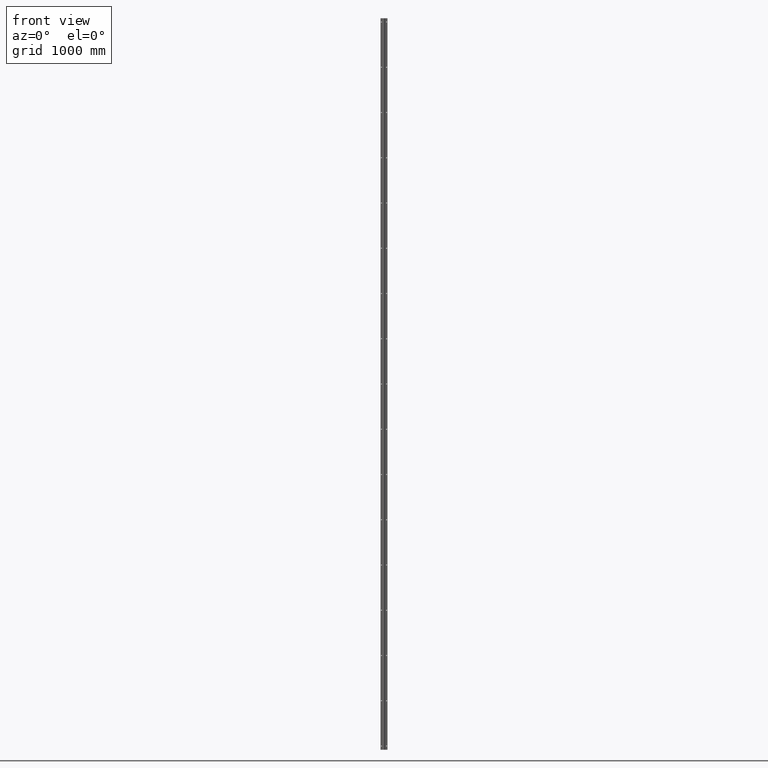
[diagram: clean part render]
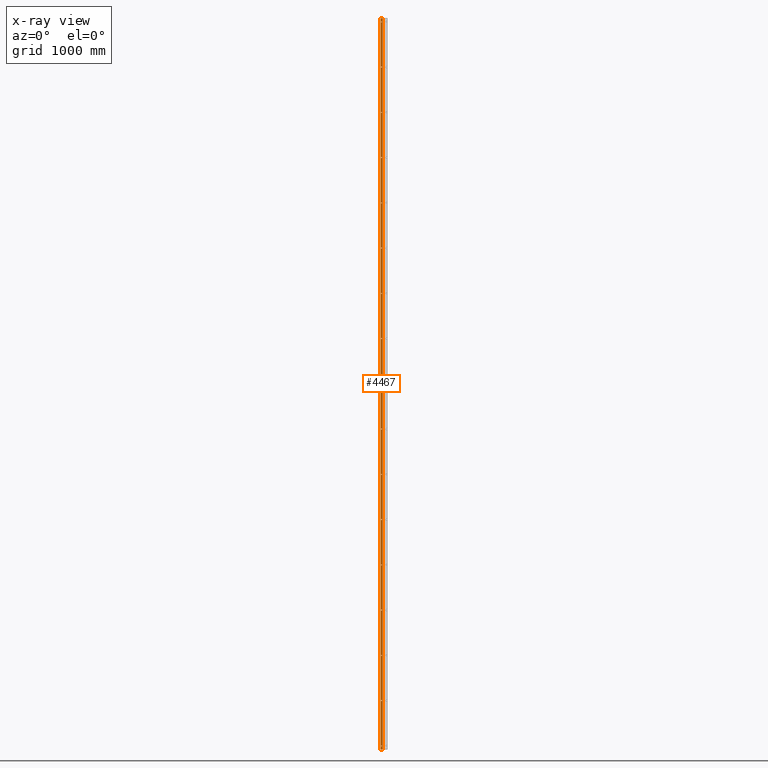
[diagram: x-ray — body ghosted, one internal face saturated and labeled with its STEP entity id]
A machine part, front view, then the same camera in x-ray: the body is ghosted and one INTERNAL B-rep face — a face not visible from any outside direction — is saturated and labeled: STEP entity #4467.
In plain terms, the highlighted planar face has unit normal (0, 1, 0).
Its self-contained STEP definition (entity closure, byte-faithful):
#9 = ORIENTED_EDGE ( 'NONE', *, *, #12617, .T. ) ;
#88 = CARTESIAN_POINT ( 'NONE',  ( -21.75000000000002487, 0.000000000000000000, 745.7500000000003411 ) ) ;
#106 = VERTEX_POINT ( 'NONE', #5376 ) ;
#114 = LINE ( 'NONE', #12943, #9185 ) ;
#159 = EDGE_CURVE ( 'NONE', #12452, #2256, #7945, .T. ) ;
#166 = DIRECTION ( 'NONE',  ( -1.000000000000000000, -0.000000000000000000, -0.000000000000000000 ) ) ;
#171 = VERTEX_POINT ( 'NONE', #584 ) ;
#177 = FACE_BOUND ( 'NONE', #8901, .T. ) ;
#180 = CIRCLE ( 'NONE', #9620, 3.249999999999975131 ) ;
#183 = CARTESIAN_POINT ( 'NONE',  ( -20.24999999999997513, 0.000000000000000000, -2224.250000000000455 ) ) ;
#198 = FACE_BOUND ( 'NONE', #6628, .T. ) ;
#225 = AXIS2_PLACEMENT_3D ( 'NONE', #12950, #1889, #9272 ) ;
#293 = LINE ( 'NONE', #940, #12491 ) ;
#298 = ORIENTED_EDGE ( 'NONE', *, *, #11846, .T. ) ;
#343 = DIRECTION ( 'NONE',  ( 0.000000000000000000, 1.000000000000000000, 0.000000000000000000 ) ) ;
#425 = CARTESIAN_POINT ( 'NONE',  ( -20.24999999999997513, 0.000000000000000000, -1117.000000000000000 ) ) ;
#451 = EDGE_CURVE ( 'NONE', #14409, #11735, #3683, .T. ) ;
#461 = EDGE_LOOP ( 'NONE', ( #2543, #9957, #11150, #6240 ) ) ;
#462 = AXIS2_PLACEMENT_3D ( 'NONE', #8703, #6246, #14807 ) ;
#489 = VERTEX_POINT ( 'NONE', #2177 ) ;
#543 = VERTEX_POINT ( 'NONE', #15737 ) ;
#567 = FACE_BOUND ( 'NONE', #5187, .T. ) ;
#584 = CARTESIAN_POINT ( 'NONE',  ( -21.75000000000002487, 0.000000000000000000, 2224.250000000000455 ) ) ;
#588 = AXIS2_PLACEMENT_3D ( 'NONE', #12261, #15745, #13373 ) ;
#618 = ORIENTED_EDGE ( 'NONE', *, *, #8066, .T. ) ;
#643 = CARTESIAN_POINT ( 'NONE',  ( -21.75000000000002487, 0.000000000000000000, 2230.750000000000455 ) ) ;
#646 = CARTESIAN_POINT ( 'NONE',  ( -21.75000000000002487, 0.000000000000000000, -739.2500000000002274 ) ) ;
#647 = VERTEX_POINT ( 'NONE', #9644 ) ;
#672 = CIRCLE ( 'NONE', #13696, 3.249999999999975131 ) ;
#681 = CARTESIAN_POINT ( 'NONE',  ( -21.75000000000002487, 0.000000000000000000, 1481.750000000000455 ) ) ;
#699 = EDGE_CURVE ( 'NONE', #543, #13088, #11761, .T. ) ;
#765 = ORIENTED_EDGE ( 'NONE', *, *, #11867, .T. ) ;
#766 = CARTESIAN_POINT ( 'NONE',  ( -21.75000000000002487, 0.000000000000000000, 1856.250000000000455 ) ) ;
#774 = VERTEX_POINT ( 'NONE', #6074 ) ;
#803 = CARTESIAN_POINT ( 'NONE',  ( -21.75000000000002487, 0.000000000000000000, 1485.000000000000227 ) ) ;
#847 = CARTESIAN_POINT ( 'NONE',  ( -21.75000000000002487, 0.000000000000000000, 1113.750000000000227 ) ) ;
#878 = VERTEX_POINT ( 'NONE', #13280 ) ;
#915 = ORIENTED_EDGE ( 'NONE', *, *, #159, .T. ) ;
#940 = CARTESIAN_POINT ( 'NONE',  ( -21.75000000000002487, 0.000000000000000000, 739.2500000000004547 ) ) ;
#956 = DIRECTION ( 'NONE',  ( 1.000000000000000000, 0.000000000000000000, 0.000000000000000000 ) ) ;
#984 = ORIENTED_EDGE ( 'NONE', *, *, #8340, .T. ) ;
#1065 = EDGE_CURVE ( 'NONE', #9954, #15138, #12925, .T. ) ;
#1097 = CARTESIAN_POINT ( 'NONE',  ( -20.24999999999997513, 0.000000000000000000, -1852.999999999999773 ) ) ;
#1119 = VECTOR ( 'NONE', #10530, 1000.000000000000000 ) ;
#1134 = CIRCLE ( 'NONE', #3235, 3.249999999999975131 ) ;
#1164 = AXIS2_PLACEMENT_3D ( 'NONE', #4050, #1503, #10124 ) ;
#1180 = VERTEX_POINT ( 'NONE', #425 ) ;
#1208 = VERTEX_POINT ( 'NONE', #7973 ) ;
#1332 = VERTEX_POINT ( 'NONE', #9428 ) ;
#1338 = DIRECTION ( 'NONE',  ( 0.000000000000000000, 1.000000000000000000, 0.000000000000000000 ) ) ;
#1373 = VECTOR ( 'NONE', #9348, 1000.000000000000000 ) ;
#1393 = VECTOR ( 'NONE', #14691, 1000.000000000000000 ) ;
#1396 = DIRECTION ( 'NONE',  ( -1.000000000000000000, -0.000000000000000000, -0.000000000000000000 ) ) ;
#1452 = DIRECTION ( 'NONE',  ( 0.000000000000000000, 1.000000000000000000, 0.000000000000000000 ) ) ;
#1487 = DIRECTION ( 'NONE',  ( 1.000000000000000000, 0.000000000000000000, 0.000000000000000000 ) ) ;
#1490 = AXIS2_PLACEMENT_3D ( 'NONE', #2707, #1452, #6596 ) ;
#1503 = DIRECTION ( 'NONE',  ( 0.000000000000000000, 1.000000000000000000, 0.000000000000000000 ) ) ;
#1527 = CIRCLE ( 'NONE', #6061, 3.249999999999975131 ) ;
#1538 = CARTESIAN_POINT ( 'NONE',  ( -21.75000000000002487, 0.000000000000000000, -2602.000000000000455 ) ) ;
#1552 = CARTESIAN_POINT ( 'NONE',  ( -20.24999999999997513, 0.000000000000000000, 1110.500000000000227 ) ) ;
#1553 = ORIENTED_EDGE ( 'NONE', *, *, #4438, .T. ) ;
#1557 = EDGE_CURVE ( 'NONE', #8913, #1208, #1906, .T. ) ;
#1592 = VERTEX_POINT ( 'NONE', #9608 ) ;
#1641 = EDGE_CURVE ( 'NONE', #2882, #8913, #9597, .T. ) ;
#1658 = DIRECTION ( 'NONE',  ( 0.000000000000000000, 0.000000000000000000, 1.000000000000000000 ) ) ;
#1669 = EDGE_LOOP ( 'NONE', ( #14869, #298, #6513, #2241 ) ) ;
#1707 = EDGE_CURVE ( 'NONE', #878, #3859, #12337, .T. ) ;
#1735 = VERTEX_POINT ( 'NONE', #13560 ) ;
#1756 = ORIENTED_EDGE ( 'NONE', *, *, #10903, .F. ) ;
#1765 = ORIENTED_EDGE ( 'NONE', *, *, #6799, .T. ) ;
#1805 = CARTESIAN_POINT ( 'NONE',  ( -20.24999999999997513, 0.000000000000000000, -1488.249999999999773 ) ) ;
#1819 = CARTESIAN_POINT ( 'NONE',  ( -21.75000000000002487, 0.000000000000000000, 1859.500000000000455 ) ) ;
#1877 = ORIENTED_EDGE ( 'NONE', *, *, #8810, .T. ) ;
#1889 = DIRECTION ( 'NONE',  ( 0.000000000000000000, 1.000000000000000000, 0.000000000000000000 ) ) ;
#1906 = LINE ( 'NONE', #10852, #1119 ) ;
#1989 = CARTESIAN_POINT ( 'NONE',  ( -20.24999999999997513, 0.000000000000000000, -1859.499999999999773 ) ) ;
#2030 = CARTESIAN_POINT ( 'NONE',  ( -21.75000000000002487, 0.000000000000000000, -2966.750000000000000 ) ) ;
#2039 = VERTEX_POINT ( 'NONE', #8080 ) ;
#2063 = DIRECTION ( 'NONE',  ( 0.000000000000000000, 1.000000000000000000, 0.000000000000000000 ) ) ;
#2090 = VERTEX_POINT ( 'NONE', #12207 ) ;
#2096 = LINE ( 'NONE', #15204, #4595 ) ;
#2102 = DIRECTION ( 'NONE',  ( -1.000000000000000000, -0.000000000000000000, -0.000000000000000000 ) ) ;
#2117 = ORIENTED_EDGE ( 'NONE', *, *, #8860, .T. ) ;
#2144 = DIRECTION ( 'NONE',  ( 0.000000000000000000, 1.000000000000000000, 0.000000000000000000 ) ) ;
#2155 = ORIENTED_EDGE ( 'NONE', *, *, #12836, .T. ) ;
#2177 = CARTESIAN_POINT ( 'NONE',  ( -20.24999999999997513, 0.000000000000000000, -2966.750000000000000 ) ) ;
#2241 = ORIENTED_EDGE ( 'NONE', *, *, #8967, .T. ) ;
#2256 = VERTEX_POINT ( 'NONE', #5153 ) ;
#2270 = CARTESIAN_POINT ( 'NONE',  ( -20.24999999999997513, 0.000000000000000000, -2970.000000000000000 ) ) ;
#2317 = CIRCLE ( 'NONE', #5655, 3.249999999999975131 ) ;
#2337 = CARTESIAN_POINT ( 'NONE',  ( -21.75000000000002487, 0.000000000000000000, -1859.499999999999773 ) ) ;
#2347 = AXIS2_PLACEMENT_3D ( 'NONE', #15330, #5418, #10454 ) ;
#2467 = CARTESIAN_POINT ( 'NONE',  ( -21.75000000000002487, 0.000000000000000000, -1117.000000000000000 ) ) ;
#2483 = EDGE_CURVE ( 'NONE', #13890, #3859, #6363, .T. ) ;
#2498 = EDGE_LOOP ( 'NONE', ( #1877, #10948, #14498, #12654 ) ) ;
#2504 = CARTESIAN_POINT ( 'NONE',  ( -20.24999999999997513, 0.000000000000000000, 1117.000000000000227 ) ) ;
#2509 = AXIS2_PLACEMENT_3D ( 'NONE', #11591, #2880, #15238 ) ;
#2543 = ORIENTED_EDGE ( 'NONE', *, *, #8794, .T. ) ;
#2561 = EDGE_LOOP ( 'NONE', ( #3089, #7226, #1756, #7565 ) ) ;
#2603 = DIRECTION ( 'NONE',  ( 0.000000000000000000, 0.000000000000000000, 1.000000000000000000 ) ) ;
#2606 = DIRECTION ( 'NONE',  ( 0.000000000000000000, 0.000000000000000000, 1.000000000000000000 ) ) ;
#2621 = DIRECTION ( 'NONE',  ( 0.000000000000000000, 0.000000000000000000, 1.000000000000000000 ) ) ;
#2697 = EDGE_LOOP ( 'NONE', ( #6349, #4918, #6143, #14050 ) ) ;
#2706 = ORIENTED_EDGE ( 'NONE', *, *, #9690, .T. ) ;
#2707 = CARTESIAN_POINT ( 'NONE',  ( -29.00000000000000000, 0.000000000000000000, 3000.000000000000000 ) ) ;
#2718 = LINE ( 'NONE', #12516, #3896 ) ;
#2749 = ORIENTED_EDGE ( 'NONE', *, *, #451, .T. ) ;
#2761 = AXIS2_PLACEMENT_3D ( 'NONE', #803, #9432, #4548 ) ;
#2767 = DIRECTION ( 'NONE',  ( 1.000000000000000000, 0.000000000000000000, 0.000000000000000000 ) ) ;
#2793 = CARTESIAN_POINT ( 'NONE',  ( -21.75000000000002487, 0.000000000000000000, 1117.000000000000227 ) ) ;
#2825 = CARTESIAN_POINT ( 'NONE',  ( -21.75000000000002487, 0.000000000000000000, 2970.000000000000000 ) ) ;
#2835 = LINE ( 'NONE', #15556, #4196 ) ;
#2873 = AXIS2_PLACEMENT_3D ( 'NONE', #14949, #11141, #2603 ) ;
#2880 = DIRECTION ( 'NONE',  ( 0.000000000000000000, 1.000000000000000000, 0.000000000000000000 ) ) ;
#2881 = CARTESIAN_POINT ( 'NONE',  ( -21.75000000000002487, 0.000000000000000000, -2224.250000000000455 ) ) ;
#2882 = VERTEX_POINT ( 'NONE', #4720 ) ;
#2895 = VERTEX_POINT ( 'NONE', #15534 ) ;
#2916 = CARTESIAN_POINT ( 'NONE',  ( -29.00000000000000000, 0.000000000000000000, -3000.000000000000000 ) ) ;
#2921 = DIRECTION ( 'NONE',  ( 1.000000000000000000, 0.000000000000000000, 0.000000000000000000 ) ) ;
#2948 = AXIS2_PLACEMENT_3D ( 'NONE', #5456, #3015, #6698 ) ;
#2984 = DIRECTION ( 'NONE',  ( 0.000000000000000000, 0.000000000000000000, 1.000000000000000000 ) ) ;
#3015 = DIRECTION ( 'NONE',  ( 0.000000000000000000, 1.000000000000000000, 0.000000000000000000 ) ) ;
#3019 = VECTOR ( 'NONE', #9175, 1000.000000000000000 ) ;
#3045 = CARTESIAN_POINT ( 'NONE',  ( -21.75000000000002487, 0.000000000000000000, 371.2499999999998863 ) ) ;
#3066 = ORIENTED_EDGE ( 'NONE', *, *, #9751, .T. ) ;
#3084 = EDGE_CURVE ( 'NONE', #10153, #9493, #14596, .T. ) ;
#3089 = ORIENTED_EDGE ( 'NONE', *, *, #2483, .T. ) ;
#3090 = FACE_BOUND ( 'NONE', #10089, .T. ) ;
#3177 = EDGE_CURVE ( 'NONE', #9088, #10153, #4776, .T. ) ;
#3192 = CIRCLE ( 'NONE', #14669, 3.249999999999975131 ) ;
#3208 = DIRECTION ( 'NONE',  ( 0.000000000000000000, 1.000000000000000000, 0.000000000000000000 ) ) ;
#3235 = AXIS2_PLACEMENT_3D ( 'NONE', #11684, #9249, #15500 ) ;
#3271 = DIRECTION ( 'NONE',  ( 0.000000000000000000, 0.000000000000000000, 1.000000000000000000 ) ) ;
#3273 = VECTOR ( 'NONE', #5647, 1000.000000000000000 ) ;
#3308 = CIRCLE ( 'NONE', #14769, 3.249999999999975131 ) ;
#3324 = VERTEX_POINT ( 'NONE', #14323 ) ;
#3331 = CARTESIAN_POINT ( 'NONE',  ( -20.24999999999997513, 0.000000000000000000, 2595.500000000000455 ) ) ;
#3337 = VECTOR ( 'NONE', #3697, 1000.000000000000000 ) ;
#3349 = EDGE_CURVE ( 'NONE', #8751, #10728, #2835, .T. ) ;
#3358 = EDGE_CURVE ( 'NONE', #9772, #4479, #114, .T. ) ;
#3365 = AXIS2_PLACEMENT_3D ( 'NONE', #7588, #14857, #2606 ) ;
#3368 = AXIS2_PLACEMENT_3D ( 'NONE', #5659, #14233, #12960 ) ;
#3377 = EDGE_CURVE ( 'NONE', #6233, #9288, #293, .T. ) ;
#3412 = CIRCLE ( 'NONE', #7831, 3.249999999999975131 ) ;
#3496 = AXIS2_PLACEMENT_3D ( 'NONE', #2270, #6022, #3516 ) ;
#3516 = DIRECTION ( 'NONE',  ( 0.000000000000000000, 0.000000000000000000, 1.000000000000000000 ) ) ;
#3526 = VECTOR ( 'NONE', #8227, 1000.000000000000000 ) ;
#3550 = VECTOR ( 'NONE', #6346, 1000.000000000000000 ) ;
#3599 = DIRECTION ( 'NONE',  ( 0.000000000000000000, 0.000000000000000000, 1.000000000000000000 ) ) ;
#3604 = CARTESIAN_POINT ( 'NONE',  ( -21.75000000000002487, 0.000000000000000000, 2966.750000000000000 ) ) ;
#3608 = CARTESIAN_POINT ( 'NONE',  ( -21.75000000000002487, 0.000000000000000000, 2598.750000000000455 ) ) ;
#3683 = CIRCLE ( 'NONE', #7055, 3.249999999999975131 ) ;
#3697 = DIRECTION ( 'NONE',  ( -1.000000000000000000, -0.000000000000000000, -0.000000000000000000 ) ) ;
#3714 = VERTEX_POINT ( 'NONE', #15219 ) ;
#3729 = VERTEX_POINT ( 'NONE', #4306 ) ;
#3736 = DIRECTION ( 'NONE',  ( -1.000000000000000000, -0.000000000000000000, -0.000000000000000000 ) ) ;
#3755 = CARTESIAN_POINT ( 'NONE',  ( -21.75000000000002487, 0.000000000000000000, -3.249999999999975131 ) ) ;
#3859 = VERTEX_POINT ( 'NONE', #15431 ) ;
#3896 = VECTOR ( 'NONE', #3992, 1000.000000000000000 ) ;
#3905 = ORIENTED_EDGE ( 'NONE', *, *, #6618, .T. ) ;
#3986 = EDGE_LOOP ( 'NONE', ( #3905, #13410, #13539, #14513 ) ) ;
#3992 = DIRECTION ( 'NONE',  ( -1.000000000000000000, -0.000000000000000000, -0.000000000000000000 ) ) ;
#4022 = CARTESIAN_POINT ( 'NONE',  ( -21.75000000000002487, 0.000000000000000000, 2966.750000000000000 ) ) ;
#4045 = CIRCLE ( 'NONE', #225, 3.249999999999975131 ) ;
#4050 = CARTESIAN_POINT ( 'NONE',  ( -20.24999999999997513, 0.000000000000000000, 0.000000000000000000 ) ) ;
#4086 = DIRECTION ( 'NONE',  ( 1.000000000000000000, 0.000000000000000000, 0.000000000000000000 ) ) ;
#4095 = ORIENTED_EDGE ( 'NONE', *, *, #10631, .T. ) ;
#4109 = ORIENTED_EDGE ( 'NONE', *, *, #7839, .T. ) ;
#4164 = CARTESIAN_POINT ( 'NONE',  ( -21.75000000000002487, 0.000000000000000000, -745.7500000000001137 ) ) ;
#4166 = CIRCLE ( 'NONE', #9983, 3.249999999999975131 ) ;
#4186 = VERTEX_POINT ( 'NONE', #15396 ) ;
#4196 = VECTOR ( 'NONE', #8376, 1000.000000000000000 ) ;
#4203 = CARTESIAN_POINT ( 'NONE',  ( -21.75000000000002487, 0.000000000000000000, -374.4999999999998295 ) ) ;
#4306 = CARTESIAN_POINT ( 'NONE',  ( -21.75000000000002487, 0.000000000000000000, -2973.250000000000000 ) ) ;
#4324 = EDGE_CURVE ( 'NONE', #14070, #6805, #7275, .T. ) ;
#4343 = EDGE_CURVE ( 'NONE', #15856, #1592, #13407, .T. ) ;
#4415 = EDGE_CURVE ( 'NONE', #1208, #2039, #2317, .T. ) ;
#4438 = EDGE_CURVE ( 'NONE', #10061, #647, #7592, .T. ) ;
#4467 = ADVANCED_FACE ( 'NONE', ( #12920, #11211, #7186, #8490, #177, #12551, #8880, #8513, #9628, #6421, #6403, #12172, #12149, #567, #9241, #3090, #5636, #198 ), #12659, .F. ) ;
#4478 = VERTEX_POINT ( 'NONE', #11310 ) ;
#4479 = VERTEX_POINT ( 'NONE', #14954 ) ;
#4499 = ORIENTED_EDGE ( 'NONE', *, *, #3177, .T. ) ;
#4502 = DIRECTION ( 'NONE',  ( 0.000000000000000000, 0.000000000000000000, 1.000000000000000000 ) ) ;
#4503 = CARTESIAN_POINT ( 'NONE',  ( -21.75000000000002487, 0.000000000000000000, 3.249999999999975131 ) ) ;
#4506 = CARTESIAN_POINT ( 'NONE',  ( -21.75000000000002487, 0.000000000000000000, 739.2500000000004547 ) ) ;
#4513 = EDGE_CURVE ( 'NONE', #9209, #2895, #2718, .T. ) ;
#4523 = DIRECTION ( 'NONE',  ( 0.000000000000000000, 1.000000000000000000, 0.000000000000000000 ) ) ;
#4548 = DIRECTION ( 'NONE',  ( 0.000000000000000000, 0.000000000000000000, 1.000000000000000000 ) ) ;
#4595 = VECTOR ( 'NONE', #11556, 1000.000000000000000 ) ;
#4626 = EDGE_CURVE ( 'NONE', #3729, #9923, #5229, .T. ) ;
#4659 = VECTOR ( 'NONE', #6804, 1000.000000000000000 ) ;
#4675 = LINE ( 'NONE', #7284, #1393 ) ;
#4709 = EDGE_CURVE ( 'NONE', #1332, #106, #7960, .T. ) ;
#4720 = CARTESIAN_POINT ( 'NONE',  ( -20.24999999999997513, 0.000000000000000000, 2602.000000000000455 ) ) ;
#4776 = LINE ( 'NONE', #2881, #5365 ) ;
#4836 = EDGE_CURVE ( 'NONE', #11623, #1332, #5251, .T. ) ;
#4918 = ORIENTED_EDGE ( 'NONE', *, *, #4415, .T. ) ;
#4986 = VECTOR ( 'NONE', #956, 1000.000000000000000 ) ;
#5053 = EDGE_LOOP ( 'NONE', ( #618, #4109, #12323, #15043 ) ) ;
#5056 = CARTESIAN_POINT ( 'NONE',  ( -21.75000000000002487, 0.000000000000000000, 1117.000000000000227 ) ) ;
#5118 = EDGE_CURVE ( 'NONE', #774, #12174, #11719, .T. ) ;
#5153 = CARTESIAN_POINT ( 'NONE',  ( -20.24999999999997513, 0.000000000000000000, 2230.750000000000455 ) ) ;
#5187 = EDGE_LOOP ( 'NONE', ( #15084, #11551, #6231, #10233 ) ) ;
#5229 = CIRCLE ( 'NONE', #2948, 3.249999999999975131 ) ;
#5251 = CIRCLE ( 'NONE', #10065, 3.249999999999975131 ) ;
#5268 = VECTOR ( 'NONE', #2767, 1000.000000000000000 ) ;
#5321 = DIRECTION ( 'NONE',  ( 1.000000000000000000, 0.000000000000000000, 0.000000000000000000 ) ) ;
#5322 = DIRECTION ( 'NONE',  ( 1.000000000000000000, 0.000000000000000000, 0.000000000000000000 ) ) ;
#5365 = VECTOR ( 'NONE', #5321, 1000.000000000000000 ) ;
#5376 = CARTESIAN_POINT ( 'NONE',  ( -20.24999999999997513, 0.000000000000000000, 1859.500000000000455 ) ) ;
#5386 = VERTEX_POINT ( 'NONE', #15837 ) ;
#5417 = CARTESIAN_POINT ( 'NONE',  ( -21.75000000000002487, 0.000000000000000000, 2227.500000000000455 ) ) ;
#5418 = DIRECTION ( 'NONE',  ( 0.000000000000000000, 1.000000000000000000, 0.000000000000000000 ) ) ;
#5431 = VECTOR ( 'NONE', #5322, 1000.000000000000000 ) ;
#5456 = CARTESIAN_POINT ( 'NONE',  ( -21.75000000000002487, 0.000000000000000000, -2970.000000000000000 ) ) ;
#5457 = ORIENTED_EDGE ( 'NONE', *, *, #7523, .T. ) ;
#5544 = AXIS2_PLACEMENT_3D ( 'NONE', #3045, #10413, #14024 ) ;
#5567 = AXIS2_PLACEMENT_3D ( 'NONE', #7221, #2063, #8284 ) ;
#5616 = CARTESIAN_POINT ( 'NONE',  ( -20.24999999999997513, 0.000000000000000000, -2230.750000000000455 ) ) ;
#5636 = FACE_BOUND ( 'NONE', #461, .T. ) ;
#5647 = DIRECTION ( 'NONE',  ( -1.000000000000000000, -0.000000000000000000, -0.000000000000000000 ) ) ;
#5655 = AXIS2_PLACEMENT_3D ( 'NONE', #3608, #11091, #12360 ) ;
#5659 = CARTESIAN_POINT ( 'NONE',  ( -20.24999999999997513, 0.000000000000000000, -1484.999999999999773 ) ) ;
#5760 = VERTEX_POINT ( 'NONE', #13277 ) ;
#5778 = CARTESIAN_POINT ( 'NONE',  ( -21.75000000000002487, 0.000000000000000000, 742.5000000000003411 ) ) ;
#5799 = CARTESIAN_POINT ( 'NONE',  ( -21.75000000000002487, 0.000000000000000000, 374.4999999999998295 ) ) ;
#5810 = ORIENTED_EDGE ( 'NONE', *, *, #10051, .T. ) ;
#5835 = CARTESIAN_POINT ( 'NONE',  ( -21.75000000000002487, 0.000000000000000000, 0.000000000000000000 ) ) ;
#5855 = DIRECTION ( 'NONE',  ( 1.000000000000000000, 0.000000000000000000, 0.000000000000000000 ) ) ;
#5858 = ORIENTED_EDGE ( 'NONE', *, *, #15383, .T. ) ;
#5861 = CARTESIAN_POINT ( 'NONE',  ( -29.00000000000000000, 0.000000000000000000, 3000.000000000000000 ) ) ;
#5914 = CARTESIAN_POINT ( 'NONE',  ( -21.75000000000002487, 0.000000000000000000, -2973.250000000000000 ) ) ;
#5927 = VECTOR ( 'NONE', #8646, 1000.000000000000000 ) ;
#5962 = CARTESIAN_POINT ( 'NONE',  ( -21.75000000000002487, 0.000000000000000000, -2595.500000000000455 ) ) ;
#6017 = DIRECTION ( 'NONE',  ( 1.000000000000000000, 0.000000000000000000, 0.000000000000000000 ) ) ;
#6022 = DIRECTION ( 'NONE',  ( 0.000000000000000000, 1.000000000000000000, 0.000000000000000000 ) ) ;
#6033 = LINE ( 'NONE', #14307, #1373 ) ;
#6055 = ORIENTED_EDGE ( 'NONE', *, *, #7959, .T. ) ;
#6061 = AXIS2_PLACEMENT_3D ( 'NONE', #7744, #343, #1658 ) ;
#6064 = VECTOR ( 'NONE', #9737, 1000.000000000000000 ) ;
#6074 = CARTESIAN_POINT ( 'NONE',  ( -20.24999999999997513, 0.000000000000000000, -2602.000000000000455 ) ) ;
#6143 = ORIENTED_EDGE ( 'NONE', *, *, #8191, .T. ) ;
#6148 = CARTESIAN_POINT ( 'NONE',  ( -20.24999999999997513, 0.000000000000000000, 739.2500000000004547 ) ) ;
#6171 = CIRCLE ( 'NONE', #5544, 3.249999999999975131 ) ;
#6206 = LINE ( 'NONE', #681, #3273 ) ;
#6231 = ORIENTED_EDGE ( 'NONE', *, *, #7955, .T. ) ;
#6233 = VERTEX_POINT ( 'NONE', #6148 ) ;
#6240 = ORIENTED_EDGE ( 'NONE', *, *, #5118, .T. ) ;
#6246 = DIRECTION ( 'NONE',  ( 0.000000000000000000, 1.000000000000000000, 0.000000000000000000 ) ) ;
#6258 = CARTESIAN_POINT ( 'NONE',  ( -21.75000000000002487, 0.000000000000000000, -367.9999999999998863 ) ) ;
#6332 = CARTESIAN_POINT ( 'NONE',  ( -21.75000000000002487, 0.000000000000000000, 367.9999999999998863 ) ) ;
#6346 = DIRECTION ( 'NONE',  ( -1.000000000000000000, -0.000000000000000000, -0.000000000000000000 ) ) ;
#6349 = ORIENTED_EDGE ( 'NONE', *, *, #1557, .T. ) ;
#6350 = CARTESIAN_POINT ( 'NONE',  ( -21.75000000000002487, 0.000000000000000000, -2230.750000000000455 ) ) ;
#6363 = LINE ( 'NONE', #11350, #7522 ) ;
#6403 = FACE_BOUND ( 'NONE', #13928, .T. ) ;
#6408 = DIRECTION ( 'NONE',  ( 0.000000000000000000, 0.000000000000000000, 1.000000000000000000 ) ) ;
#6417 = VERTEX_POINT ( 'NONE', #5056 ) ;
#6421 = FACE_BOUND ( 'NONE', #8323, .T. ) ;
#6484 = LINE ( 'NONE', #14867, #3550 ) ;
#6506 = CIRCLE ( 'NONE', #2347, 3.249999999999975131 ) ;
#6513 = ORIENTED_EDGE ( 'NONE', *, *, #12931, .T. ) ;
#6519 = VECTOR ( 'NONE', #1396, 1000.000000000000000 ) ;
#6520 = EDGE_CURVE ( 'NONE', #3324, #543, #6171, .T. ) ;
#6525 = CARTESIAN_POINT ( 'NONE',  ( -20.24999999999997513, 0.000000000000000000, -1856.249999999999773 ) ) ;
#6596 = DIRECTION ( 'NONE',  ( 0.000000000000000000, -0.000000000000000000, 1.000000000000000000 ) ) ;
#6618 = EDGE_CURVE ( 'NONE', #5760, #9772, #12098, .T. ) ;
#6628 = EDGE_LOOP ( 'NONE', ( #9771, #10709, #8662, #10462 ) ) ;
#6666 = ORIENTED_EDGE ( 'NONE', *, *, #14770, .T. ) ;
#6688 = CIRCLE ( 'NONE', #8654, 3.249999999999975131 ) ;
#6698 = DIRECTION ( 'NONE',  ( 0.000000000000000000, 0.000000000000000000, 1.000000000000000000 ) ) ;
#6700 = DIRECTION ( 'NONE',  ( 0.000000000000000000, 0.000000000000000000, 1.000000000000000000 ) ) ;
#6718 = EDGE_CURVE ( 'NONE', #4478, #9954, #3412, .T. ) ;
#6775 = CARTESIAN_POINT ( 'NONE',  ( -21.75000000000002487, 0.000000000000000000, 1110.500000000000227 ) ) ;
#6799 = EDGE_CURVE ( 'NONE', #8450, #11176, #9576, .T. ) ;
#6804 = DIRECTION ( 'NONE',  ( 1.000000000000000000, 0.000000000000000000, 0.000000000000000000 ) ) ;
#6805 = VERTEX_POINT ( 'NONE', #2337 ) ;
#6826 = DIRECTION ( 'NONE',  ( 1.000000000000000000, 0.000000000000000000, 0.000000000000000000 ) ) ;
#6844 = ORIENTED_EDGE ( 'NONE', *, *, #13803, .T. ) ;
#6859 = CARTESIAN_POINT ( 'NONE',  ( -20.24999999999997513, 0.000000000000000000, -2973.250000000000000 ) ) ;
#6878 = LINE ( 'NONE', #2793, #3019 ) ;
#6936 = VERTEX_POINT ( 'NONE', #6350 ) ;
#7055 = AXIS2_PLACEMENT_3D ( 'NONE', #9252, #12392, #8730 ) ;
#7102 = EDGE_CURVE ( 'NONE', #171, #12452, #13057, .T. ) ;
#7184 = CIRCLE ( 'NONE', #16016, 3.249999999999975131 ) ;
#7186 = FACE_OUTER_BOUND ( 'NONE', #2561, .T. ) ;
#7221 = CARTESIAN_POINT ( 'NONE',  ( -21.75000000000002487, 0.000000000000000000, -2227.500000000000455 ) ) ;
#7226 = ORIENTED_EDGE ( 'NONE', *, *, #1707, .F. ) ;
#7275 = LINE ( 'NONE', #8631, #8807 ) ;
#7284 = CARTESIAN_POINT ( 'NONE',  ( -21.75000000000002487, 0.000000000000000000, 2973.250000000000000 ) ) ;
#7286 = LINE ( 'NONE', #6332, #6519 ) ;
#7336 = EDGE_CURVE ( 'NONE', #14615, #11186, #672, .T. ) ;
#7397 = AXIS2_PLACEMENT_3D ( 'NONE', #9979, #14973, #2621 ) ;
#7416 = CARTESIAN_POINT ( 'NONE',  ( -20.24999999999997513, 0.000000000000000000, -367.9999999999998863 ) ) ;
#7446 = LINE ( 'NONE', #16000, #11646 ) ;
#7472 = DIRECTION ( 'NONE',  ( 0.000000000000000000, 0.000000000000000000, 1.000000000000000000 ) ) ;
#7522 = VECTOR ( 'NONE', #1487, 1000.000000000000000 ) ;
#7523 = EDGE_CURVE ( 'NONE', #1735, #3324, #7286, .T. ) ;
#7565 = ORIENTED_EDGE ( 'NONE', *, *, #15037, .T. ) ;
#7588 = CARTESIAN_POINT ( 'NONE',  ( -21.75000000000002487, 0.000000000000000000, -371.2499999999998863 ) ) ;
#7592 = CIRCLE ( 'NONE', #1164, 3.249999999999975131 ) ;
#7606 = CARTESIAN_POINT ( 'NONE',  ( -21.75000000000002487, 0.000000000000000000, -745.7500000000001137 ) ) ;
#7674 = CIRCLE ( 'NONE', #12264, 3.249999999999975131 ) ;
#7744 = CARTESIAN_POINT ( 'NONE',  ( -20.24999999999997513, 0.000000000000000000, -371.2499999999998863 ) ) ;
#7831 = AXIS2_PLACEMENT_3D ( 'NONE', #10623, #11869, #4502 ) ;
#7839 = EDGE_CURVE ( 'NONE', #6417, #12757, #6878, .T. ) ;
#7848 = AXIS2_PLACEMENT_3D ( 'NONE', #5835, #2144, #15498 ) ;
#7895 = CARTESIAN_POINT ( 'NONE',  ( -21.75000000000002487, 0.000000000000000000, 1488.250000000000227 ) ) ;
#7910 = EDGE_LOOP ( 'NONE', ( #8275, #1765, #9103, #12727 ) ) ;
#7933 = EDGE_LOOP ( 'NONE', ( #12618, #10766, #9602, #5457 ) ) ;
#7941 = AXIS2_PLACEMENT_3D ( 'NONE', #5417, #10334, #2984 ) ;
#7945 = LINE ( 'NONE', #11664, #13308 ) ;
#7955 = EDGE_CURVE ( 'NONE', #5386, #9209, #10131, .T. ) ;
#7958 = VECTOR ( 'NONE', #2921, 1000.000000000000000 ) ;
#7959 = EDGE_CURVE ( 'NONE', #13962, #10061, #14939, .T. ) ;
#7960 = LINE ( 'NONE', #1819, #4659 ) ;
#7973 = CARTESIAN_POINT ( 'NONE',  ( -21.75000000000002487, 0.000000000000000000, 2595.500000000000455 ) ) ;
#7977 = CIRCLE ( 'NONE', #3496, 3.249999999999975131 ) ;
#8005 = CARTESIAN_POINT ( 'NONE',  ( -20.24999999999997513, 0.000000000000000000, 1485.000000000000227 ) ) ;
#8045 = LINE ( 'NONE', #16028, #5927 ) ;
#8056 = CARTESIAN_POINT ( 'NONE',  ( -21.75000000000002487, 0.000000000000000000, -1852.999999999999773 ) ) ;
#8066 = EDGE_CURVE ( 'NONE', #10728, #6417, #7674, .T. ) ;
#8080 = CARTESIAN_POINT ( 'NONE',  ( -21.75000000000002487, 0.000000000000000000, 2602.000000000000455 ) ) ;
#8167 = VERTEX_POINT ( 'NONE', #7606 ) ;
#8178 = LINE ( 'NONE', #5861, #6064 ) ;
#8180 = LINE ( 'NONE', #14367, #14701 ) ;
#8191 = EDGE_CURVE ( 'NONE', #2039, #2882, #8045, .T. ) ;
#8211 = CIRCLE ( 'NONE', #5567, 3.249999999999975131 ) ;
#8227 = DIRECTION ( 'NONE',  ( 1.000000000000000000, 0.000000000000000000, 0.000000000000000000 ) ) ;
#8275 = ORIENTED_EDGE ( 'NONE', *, *, #14239, .T. ) ;
#8284 = DIRECTION ( 'NONE',  ( 0.000000000000000000, 0.000000000000000000, 1.000000000000000000 ) ) ;
#8293 = AXIS2_PLACEMENT_3D ( 'NONE', #2825, #12476, #6408 ) ;
#8323 = EDGE_LOOP ( 'NONE', ( #2117, #6055, #1553, #4095 ) ) ;
#8327 = VECTOR ( 'NONE', #10440, 1000.000000000000000 ) ;
#8328 = VERTEX_POINT ( 'NONE', #12529 ) ;
#8340 = EDGE_CURVE ( 'NONE', #2256, #4186, #6506, .T. ) ;
#8369 = CIRCLE ( 'NONE', #2509, 3.249999999999975131 ) ;
#8376 = DIRECTION ( 'NONE',  ( -1.000000000000000000, -0.000000000000000000, -0.000000000000000000 ) ) ;
#8381 = CARTESIAN_POINT ( 'NONE',  ( -21.75000000000002487, 0.000000000000000000, 1853.000000000000455 ) ) ;
#8450 = VERTEX_POINT ( 'NONE', #8056 ) ;
#8490 = FACE_BOUND ( 'NONE', #12852, .T. ) ;
#8513 = FACE_BOUND ( 'NONE', #2498, .T. ) ;
#8519 = CARTESIAN_POINT ( 'NONE',  ( -20.24999999999997513, 0.000000000000000000, 3.249999999999975131 ) ) ;
#8542 = ORIENTED_EDGE ( 'NONE', *, *, #1065, .T. ) ;
#8631 = CARTESIAN_POINT ( 'NONE',  ( -21.75000000000002487, 0.000000000000000000, -1859.499999999999773 ) ) ;
#8640 = EDGE_CURVE ( 'NONE', #2895, #9598, #15920, .T. ) ;
#8646 = DIRECTION ( 'NONE',  ( 1.000000000000000000, 0.000000000000000000, 0.000000000000000000 ) ) ;
#8654 = AXIS2_PLACEMENT_3D ( 'NONE', #15711, #4523, #13140 ) ;
#8662 = ORIENTED_EDGE ( 'NONE', *, *, #11562, .T. ) ;
#8703 = CARTESIAN_POINT ( 'NONE',  ( -20.24999999999997513, 0.000000000000000000, -2598.750000000000455 ) ) ;
#8730 = DIRECTION ( 'NONE',  ( 0.000000000000000000, 0.000000000000000000, 1.000000000000000000 ) ) ;
#8751 = VERTEX_POINT ( 'NONE', #1552 ) ;
#8794 = EDGE_CURVE ( 'NONE', #12174, #14423, #6688, .T. ) ;
#8807 = VECTOR ( 'NONE', #3736, 1000.000000000000000 ) ;
#8810 = EDGE_CURVE ( 'NONE', #9288, #15430, #4166, .T. ) ;
#8860 = EDGE_CURVE ( 'NONE', #8328, #13962, #11288, .T. ) ;
#8880 = FACE_BOUND ( 'NONE', #5053, .T. ) ;
#8901 = EDGE_LOOP ( 'NONE', ( #15975, #14819, #15644, #5810 ) ) ;
#8913 = VERTEX_POINT ( 'NONE', #3331 ) ;
#8917 = LINE ( 'NONE', #5914, #10441 ) ;
#8938 = DIRECTION ( 'NONE',  ( 0.000000000000000000, 0.000000000000000000, 1.000000000000000000 ) ) ;
#8967 = EDGE_CURVE ( 'NONE', #1180, #14615, #10674, .T. ) ;
#9088 = VERTEX_POINT ( 'NONE', #12645 ) ;
#9093 = LINE ( 'NONE', #4203, #8327 ) ;
#9103 = ORIENTED_EDGE ( 'NONE', *, *, #12262, .T. ) ;
#9129 = LINE ( 'NONE', #3755, #3337 ) ;
#9175 = DIRECTION ( 'NONE',  ( 1.000000000000000000, 0.000000000000000000, 0.000000000000000000 ) ) ;
#9185 = VECTOR ( 'NONE', #6826, 1000.000000000000000 ) ;
#9209 = VERTEX_POINT ( 'NONE', #1805 ) ;
#9241 = FACE_BOUND ( 'NONE', #7910, .T. ) ;
#9249 = DIRECTION ( 'NONE',  ( 0.000000000000000000, 1.000000000000000000, 0.000000000000000000 ) ) ;
#9252 = CARTESIAN_POINT ( 'NONE',  ( -20.24999999999997513, 0.000000000000000000, -742.5000000000001137 ) ) ;
#9263 = EDGE_CURVE ( 'NONE', #6936, #9088, #8211, .T. ) ;
#9272 = DIRECTION ( 'NONE',  ( 0.000000000000000000, 0.000000000000000000, 1.000000000000000000 ) ) ;
#9288 = VERTEX_POINT ( 'NONE', #4506 ) ;
#9348 = DIRECTION ( 'NONE',  ( 1.000000000000000000, 0.000000000000000000, 0.000000000000000000 ) ) ;
#9405 = DIRECTION ( 'NONE',  ( 0.000000000000000000, 1.000000000000000000, 0.000000000000000000 ) ) ;
#9428 = CARTESIAN_POINT ( 'NONE',  ( -21.75000000000002487, 0.000000000000000000, 1859.500000000000455 ) ) ;
#9432 = DIRECTION ( 'NONE',  ( 0.000000000000000000, 1.000000000000000000, 0.000000000000000000 ) ) ;
#9454 = ORIENTED_EDGE ( 'NONE', *, *, #9263, .T. ) ;
#9486 = DIRECTION ( 'NONE',  ( -1.000000000000000000, -0.000000000000000000, -0.000000000000000000 ) ) ;
#9493 = VERTEX_POINT ( 'NONE', #5616 ) ;
#9576 = LINE ( 'NONE', #11057, #4986 ) ;
#9587 = VECTOR ( 'NONE', #10265, 1000.000000000000000 ) ;
#9597 = CIRCLE ( 'NONE', #11375, 3.249999999999975131 ) ;
#9598 = VERTEX_POINT ( 'NONE', #13637 ) ;
#9602 = ORIENTED_EDGE ( 'NONE', *, *, #15143, .T. ) ;
#9608 = CARTESIAN_POINT ( 'NONE',  ( -21.75000000000002487, 0.000000000000000000, -367.9999999999998863 ) ) ;
#9620 = AXIS2_PLACEMENT_3D ( 'NONE', #15291, #10401, #14165 ) ;
#9628 = FACE_BOUND ( 'NONE', #7933, .T. ) ;
#9644 = CARTESIAN_POINT ( 'NONE',  ( -20.24999999999997513, 0.000000000000000000, -3.249999999999975131 ) ) ;
#9653 = CARTESIAN_POINT ( 'NONE',  ( -21.75000000000002487, 0.000000000000000000, -1117.000000000000000 ) ) ;
#9663 = EDGE_CURVE ( 'NONE', #2090, #774, #13777, .T. ) ;
#9690 = EDGE_CURVE ( 'NONE', #4186, #171, #6484, .T. ) ;
#9737 = DIRECTION ( 'NONE',  ( 1.000000000000000000, 0.000000000000000000, 0.000000000000000000 ) ) ;
#9751 = EDGE_CURVE ( 'NONE', #11735, #8167, #15489, .T. ) ;
#9771 = ORIENTED_EDGE ( 'NONE', *, *, #4626, .T. ) ;
#9772 = VERTEX_POINT ( 'NONE', #7895 ) ;
#9907 = DIRECTION ( 'NONE',  ( 0.000000000000000000, 1.000000000000000000, 0.000000000000000000 ) ) ;
#9923 = VERTEX_POINT ( 'NONE', #15546 ) ;
#9954 = VERTEX_POINT ( 'NONE', #13297 ) ;
#9957 = ORIENTED_EDGE ( 'NONE', *, *, #11696, .T. ) ;
#9979 = CARTESIAN_POINT ( 'NONE',  ( -20.24999999999997513, 0.000000000000000000, -2227.500000000000455 ) ) ;
#9983 = AXIS2_PLACEMENT_3D ( 'NONE', #5778, #9405, #10646 ) ;
#10025 = VERTEX_POINT ( 'NONE', #7416 ) ;
#10038 = VERTEX_POINT ( 'NONE', #13397 ) ;
#10049 = ORIENTED_EDGE ( 'NONE', *, *, #7102, .T. ) ;
#10051 = EDGE_CURVE ( 'NONE', #13859, #11623, #7446, .T. ) ;
#10058 = DIRECTION ( 'NONE',  ( 0.000000000000000000, 0.000000000000000000, 1.000000000000000000 ) ) ;
#10061 = VERTEX_POINT ( 'NONE', #8519 ) ;
#10064 = VERTEX_POINT ( 'NONE', #12289 ) ;
#10065 = AXIS2_PLACEMENT_3D ( 'NONE', #766, #10643, #3271 ) ;
#10089 = EDGE_LOOP ( 'NONE', ( #9454, #4499, #12718, #13715 ) ) ;
#10124 = DIRECTION ( 'NONE',  ( 0.000000000000000000, 0.000000000000000000, 1.000000000000000000 ) ) ;
#10131 = CIRCLE ( 'NONE', #3368, 3.249999999999975131 ) ;
#10153 = VERTEX_POINT ( 'NONE', #183 ) ;
#10171 = CARTESIAN_POINT ( 'NONE',  ( -20.24999999999997513, 0.000000000000000000, 1853.000000000000455 ) ) ;
#10198 = LINE ( 'NONE', #2030, #10391 ) ;
#10233 = ORIENTED_EDGE ( 'NONE', *, *, #4513, .T. ) ;
#10265 = DIRECTION ( 'NONE',  ( -1.000000000000000000, -0.000000000000000000, -0.000000000000000000 ) ) ;
#10334 = DIRECTION ( 'NONE',  ( 0.000000000000000000, 1.000000000000000000, 0.000000000000000000 ) ) ;
#10389 = VERTEX_POINT ( 'NONE', #646 ) ;
#10391 = VECTOR ( 'NONE', #15658, 1000.000000000000000 ) ;
#10401 = DIRECTION ( 'NONE',  ( 0.000000000000000000, 1.000000000000000000, 0.000000000000000000 ) ) ;
#10413 = DIRECTION ( 'NONE',  ( 0.000000000000000000, 1.000000000000000000, 0.000000000000000000 ) ) ;
#10440 = DIRECTION ( 'NONE',  ( -1.000000000000000000, -0.000000000000000000, -0.000000000000000000 ) ) ;
#10441 = VECTOR ( 'NONE', #9486, 1000.000000000000000 ) ;
#10454 = DIRECTION ( 'NONE',  ( 0.000000000000000000, 0.000000000000000000, 1.000000000000000000 ) ) ;
#10460 = CIRCLE ( 'NONE', #8293, 3.249999999999975131 ) ;
#10462 = ORIENTED_EDGE ( 'NONE', *, *, #11634, .T. ) ;
#10466 = DIRECTION ( 'NONE',  ( 1.000000000000000000, 0.000000000000000000, 0.000000000000000000 ) ) ;
#10478 = CARTESIAN_POINT ( 'NONE',  ( -12.50000000000000178, 8.673617379884035472E-16, 3000.000000000000000 ) ) ;
#10530 = DIRECTION ( 'NONE',  ( -1.000000000000000000, -0.000000000000000000, -0.000000000000000000 ) ) ;
#10555 = CARTESIAN_POINT ( 'NONE',  ( -20.24999999999997513, 0.000000000000000000, 745.7500000000003411 ) ) ;
#10623 = CARTESIAN_POINT ( 'NONE',  ( -20.24999999999997513, 0.000000000000000000, 2970.000000000000000 ) ) ;
#10630 = CARTESIAN_POINT ( 'NONE',  ( -29.00000000000000000, 0.000000000000000000, 3000.000000000000000 ) ) ;
#10631 = EDGE_CURVE ( 'NONE', #647, #8328, #9129, .T. ) ;
#10643 = DIRECTION ( 'NONE',  ( 0.000000000000000000, 1.000000000000000000, 0.000000000000000000 ) ) ;
#10646 = DIRECTION ( 'NONE',  ( 0.000000000000000000, 0.000000000000000000, 1.000000000000000000 ) ) ;
#10674 = LINE ( 'NONE', #2467, #13789 ) ;
#10709 = ORIENTED_EDGE ( 'NONE', *, *, #13930, .T. ) ;
#10728 = VERTEX_POINT ( 'NONE', #6775 ) ;
#10766 = ORIENTED_EDGE ( 'NONE', *, *, #699, .T. ) ;
#10774 = DIRECTION ( 'NONE',  ( 0.000000000000000000, 0.000000000000000000, 1.000000000000000000 ) ) ;
#10776 = CARTESIAN_POINT ( 'NONE',  ( -21.75000000000002487, 0.000000000000000000, -1481.750000000000000 ) ) ;
#10852 = CARTESIAN_POINT ( 'NONE',  ( -21.75000000000002487, 0.000000000000000000, 2595.500000000000455 ) ) ;
#10903 = EDGE_CURVE ( 'NONE', #12534, #878, #8178, .T. ) ;
#10948 = ORIENTED_EDGE ( 'NONE', *, *, #11743, .T. ) ;
#10953 = AXIS2_PLACEMENT_3D ( 'NONE', #14793, #1338, #7472 ) ;
#10970 = DIRECTION ( 'NONE',  ( -1.000000000000000000, -0.000000000000000000, -0.000000000000000000 ) ) ;
#11057 = CARTESIAN_POINT ( 'NONE',  ( -21.75000000000002487, 0.000000000000000000, -1852.999999999999773 ) ) ;
#11078 = DIRECTION ( 'NONE',  ( -1.000000000000000000, -0.000000000000000000, -0.000000000000000000 ) ) ;
#11091 = DIRECTION ( 'NONE',  ( 0.000000000000000000, 1.000000000000000000, 0.000000000000000000 ) ) ;
#11141 = DIRECTION ( 'NONE',  ( 0.000000000000000000, 1.000000000000000000, 0.000000000000000000 ) ) ;
#11150 = ORIENTED_EDGE ( 'NONE', *, *, #9663, .T. ) ;
#11176 = VERTEX_POINT ( 'NONE', #1097 ) ;
#11186 = VERTEX_POINT ( 'NONE', #13732 ) ;
#11189 = CARTESIAN_POINT ( 'NONE',  ( -21.75000000000002487, 0.000000000000000000, -2602.000000000000455 ) ) ;
#11211 = FACE_BOUND ( 'NONE', #14093, .T. ) ;
#11288 = CIRCLE ( 'NONE', #7848, 3.249999999999975131 ) ;
#11310 = CARTESIAN_POINT ( 'NONE',  ( -20.24999999999997513, 0.000000000000000000, 2973.250000000000000 ) ) ;
#11350 = CARTESIAN_POINT ( 'NONE',  ( -29.00000000000000000, 0.000000000000000000, -3000.000000000000000 ) ) ;
#11375 = AXIS2_PLACEMENT_3D ( 'NONE', #13072, #3208, #14188 ) ;
#11551 = ORIENTED_EDGE ( 'NONE', *, *, #14597, .T. ) ;
#11556 = DIRECTION ( 'NONE',  ( -1.000000000000000000, -0.000000000000000000, -0.000000000000000000 ) ) ;
#11562 = EDGE_CURVE ( 'NONE', #489, #15897, #7977, .T. ) ;
#11591 = CARTESIAN_POINT ( 'NONE',  ( -20.24999999999997513, 0.000000000000000000, 1113.750000000000227 ) ) ;
#11623 = VERTEX_POINT ( 'NONE', #8381 ) ;
#11634 = EDGE_CURVE ( 'NONE', #15897, #3729, #8917, .T. ) ;
#11646 = VECTOR ( 'NONE', #10970, 1000.000000000000000 ) ;
#11664 = CARTESIAN_POINT ( 'NONE',  ( -21.75000000000002487, 0.000000000000000000, 2230.750000000000455 ) ) ;
#11684 = CARTESIAN_POINT ( 'NONE',  ( -20.24999999999997513, 0.000000000000000000, 1856.250000000000455 ) ) ;
#11696 = EDGE_CURVE ( 'NONE', #14423, #2090, #12586, .T. ) ;
#11719 = LINE ( 'NONE', #1538, #9587 ) ;
#11735 = VERTEX_POINT ( 'NONE', #13795 ) ;
#11743 = EDGE_CURVE ( 'NONE', #15430, #12949, #11793, .T. ) ;
#11745 = ORIENTED_EDGE ( 'NONE', *, *, #15954, .T. ) ;
#11761 = LINE ( 'NONE', #5799, #15599 ) ;
#11765 = CARTESIAN_POINT ( 'NONE',  ( -21.75000000000002487, 0.000000000000000000, -2595.500000000000455 ) ) ;
#11776 = LINE ( 'NONE', #12872, #7958 ) ;
#11787 = EDGE_LOOP ( 'NONE', ( #9, #11745, #2749, #3066 ) ) ;
#11793 = LINE ( 'NONE', #88, #5268 ) ;
#11846 = EDGE_CURVE ( 'NONE', #11186, #3714, #11776, .T. ) ;
#11867 = EDGE_CURVE ( 'NONE', #10038, #15856, #9093, .T. ) ;
#11869 = DIRECTION ( 'NONE',  ( 0.000000000000000000, 1.000000000000000000, 0.000000000000000000 ) ) ;
#11885 = ORIENTED_EDGE ( 'NONE', *, *, #4343, .T. ) ;
#11888 = CARTESIAN_POINT ( 'NONE',  ( -21.75000000000002487, 0.000000000000000000, 3.249999999999975131 ) ) ;
#11960 = LINE ( 'NONE', #6258, #5431 ) ;
#12098 = CIRCLE ( 'NONE', #2761, 3.249999999999975131 ) ;
#12149 = FACE_BOUND ( 'NONE', #1669, .T. ) ;
#12165 = CARTESIAN_POINT ( 'NONE',  ( -20.24999999999997513, 0.000000000000000000, 1481.750000000000455 ) ) ;
#12172 = FACE_BOUND ( 'NONE', #11787, .T. ) ;
#12174 = VERTEX_POINT ( 'NONE', #11189 ) ;
#12207 = CARTESIAN_POINT ( 'NONE',  ( -20.24999999999997513, 0.000000000000000000, -2595.500000000000455 ) ) ;
#12261 = CARTESIAN_POINT ( 'NONE',  ( -21.75000000000002487, 0.000000000000000000, -742.5000000000001137 ) ) ;
#12262 = EDGE_CURVE ( 'NONE', #11176, #14070, #7184, .T. ) ;
#12264 = AXIS2_PLACEMENT_3D ( 'NONE', #847, #14554, #10774 ) ;
#12289 = CARTESIAN_POINT ( 'NONE',  ( -21.75000000000002487, 0.000000000000000000, 2973.250000000000000 ) ) ;
#12323 = ORIENTED_EDGE ( 'NONE', *, *, #14879, .T. ) ;
#12337 = LINE ( 'NONE', #10478, #14609 ) ;
#12360 = DIRECTION ( 'NONE',  ( 0.000000000000000000, 0.000000000000000000, 1.000000000000000000 ) ) ;
#12392 = DIRECTION ( 'NONE',  ( 0.000000000000000000, 1.000000000000000000, 0.000000000000000000 ) ) ;
#12452 = VERTEX_POINT ( 'NONE', #643 ) ;
#12476 = DIRECTION ( 'NONE',  ( 0.000000000000000000, 1.000000000000000000, 0.000000000000000000 ) ) ;
#12491 = VECTOR ( 'NONE', #2102, 1000.000000000000000 ) ;
#12516 = CARTESIAN_POINT ( 'NONE',  ( -21.75000000000002487, 0.000000000000000000, -1488.249999999999773 ) ) ;
#12529 = CARTESIAN_POINT ( 'NONE',  ( -21.75000000000002487, 0.000000000000000000, -3.249999999999975131 ) ) ;
#12534 = VERTEX_POINT ( 'NONE', #10630 ) ;
#12551 = FACE_BOUND ( 'NONE', #3986, .T. ) ;
#12586 = LINE ( 'NONE', #5962, #14677 ) ;
#12617 = EDGE_CURVE ( 'NONE', #8167, #10389, #13899, .T. ) ;
#12618 = ORIENTED_EDGE ( 'NONE', *, *, #6520, .T. ) ;
#12645 = CARTESIAN_POINT ( 'NONE',  ( -21.75000000000002487, 0.000000000000000000, -2224.250000000000455 ) ) ;
#12654 = ORIENTED_EDGE ( 'NONE', *, *, #3377, .T. ) ;
#12659 = PLANE ( 'NONE',  #1490 ) ;
#12718 = ORIENTED_EDGE ( 'NONE', *, *, #3084, .T. ) ;
#12727 = ORIENTED_EDGE ( 'NONE', *, *, #4324, .T. ) ;
#12757 = VERTEX_POINT ( 'NONE', #2504 ) ;
#12785 = DIRECTION ( 'NONE',  ( -1.000000000000000000, -0.000000000000000000, -0.000000000000000000 ) ) ;
#12836 = EDGE_CURVE ( 'NONE', #1592, #10025, #11960, .T. ) ;
#12852 = EDGE_LOOP ( 'NONE', ( #10049, #915, #984, #2706 ) ) ;
#12872 = CARTESIAN_POINT ( 'NONE',  ( -21.75000000000002487, 0.000000000000000000, -1110.500000000000000 ) ) ;
#12920 = FACE_BOUND ( 'NONE', #2697, .T. ) ;
#12925 = LINE ( 'NONE', #4022, #13490 ) ;
#12931 = EDGE_CURVE ( 'NONE', #3714, #1180, #180, .T. ) ;
#12943 = CARTESIAN_POINT ( 'NONE',  ( -21.75000000000002487, 0.000000000000000000, 1488.250000000000227 ) ) ;
#12949 = VERTEX_POINT ( 'NONE', #10555 ) ;
#12950 = CARTESIAN_POINT ( 'NONE',  ( -20.24999999999997513, 0.000000000000000000, 742.5000000000003411 ) ) ;
#12960 = DIRECTION ( 'NONE',  ( 0.000000000000000000, 0.000000000000000000, 1.000000000000000000 ) ) ;
#13017 = CARTESIAN_POINT ( 'NONE',  ( -20.24999999999997513, 0.000000000000000000, -739.2500000000002274 ) ) ;
#13057 = CIRCLE ( 'NONE', #7941, 3.249999999999975131 ) ;
#13072 = CARTESIAN_POINT ( 'NONE',  ( -20.24999999999997513, 0.000000000000000000, 2598.750000000000455 ) ) ;
#13088 = VERTEX_POINT ( 'NONE', #14866 ) ;
#13140 = DIRECTION ( 'NONE',  ( 0.000000000000000000, 0.000000000000000000, 1.000000000000000000 ) ) ;
#13165 = CIRCLE ( 'NONE', #10953, 3.249999999999975131 ) ;
#13277 = CARTESIAN_POINT ( 'NONE',  ( -21.75000000000002487, 0.000000000000000000, 1481.750000000000455 ) ) ;
#13280 = CARTESIAN_POINT ( 'NONE',  ( -12.50000000000000178, 8.673617379884035472E-16, 3000.000000000000000 ) ) ;
#13297 = CARTESIAN_POINT ( 'NONE',  ( -20.24999999999997513, 0.000000000000000000, 2966.750000000000000 ) ) ;
#13307 = EDGE_CURVE ( 'NONE', #106, #13859, #1134, .T. ) ;
#13308 = VECTOR ( 'NONE', #4086, 1000.000000000000000 ) ;
#13373 = DIRECTION ( 'NONE',  ( 0.000000000000000000, 0.000000000000000000, 1.000000000000000000 ) ) ;
#13397 = CARTESIAN_POINT ( 'NONE',  ( -20.24999999999997513, 0.000000000000000000, -374.4999999999998295 ) ) ;
#13407 = CIRCLE ( 'NONE', #3365, 3.249999999999975131 ) ;
#13410 = ORIENTED_EDGE ( 'NONE', *, *, #3358, .T. ) ;
#13490 = VECTOR ( 'NONE', #166, 1000.000000000000000 ) ;
#13491 = EDGE_CURVE ( 'NONE', #14209, #5760, #6206, .T. ) ;
#13522 = EDGE_CURVE ( 'NONE', #12949, #6233, #4045, .T. ) ;
#13539 = ORIENTED_EDGE ( 'NONE', *, *, #15889, .T. ) ;
#13560 = CARTESIAN_POINT ( 'NONE',  ( -20.24999999999997513, 0.000000000000000000, 367.9999999999998863 ) ) ;
#13637 = CARTESIAN_POINT ( 'NONE',  ( -21.75000000000002487, 0.000000000000000000, -1481.750000000000000 ) ) ;
#13696 = AXIS2_PLACEMENT_3D ( 'NONE', #15941, #9907, #3599 ) ;
#13715 = ORIENTED_EDGE ( 'NONE', *, *, #14314, .T. ) ;
#13723 = DIRECTION ( 'NONE',  ( 0.000000000000000000, 1.000000000000000000, 0.000000000000000000 ) ) ;
#13732 = CARTESIAN_POINT ( 'NONE',  ( -21.75000000000002487, 0.000000000000000000, -1110.500000000000000 ) ) ;
#13777 = CIRCLE ( 'NONE', #462, 3.249999999999975131 ) ;
#13789 = VECTOR ( 'NONE', #11078, 1000.000000000000000 ) ;
#13795 = CARTESIAN_POINT ( 'NONE',  ( -20.24999999999997513, 0.000000000000000000, -745.7500000000001137 ) ) ;
#13803 = EDGE_CURVE ( 'NONE', #10025, #10038, #1527, .T. ) ;
#13859 = VERTEX_POINT ( 'NONE', #10171 ) ;
#13890 = VERTEX_POINT ( 'NONE', #2916 ) ;
#13899 = CIRCLE ( 'NONE', #588, 3.249999999999975131 ) ;
#13928 = EDGE_LOOP ( 'NONE', ( #11885, #2155, #6844, #765 ) ) ;
#13930 = EDGE_CURVE ( 'NONE', #9923, #489, #10198, .T. ) ;
#13962 = VERTEX_POINT ( 'NONE', #11888 ) ;
#13999 = VECTOR ( 'NONE', #10466, 1000.000000000000000 ) ;
#14024 = DIRECTION ( 'NONE',  ( 0.000000000000000000, 0.000000000000000000, 1.000000000000000000 ) ) ;
#14050 = ORIENTED_EDGE ( 'NONE', *, *, #1641, .T. ) ;
#14070 = VERTEX_POINT ( 'NONE', #1989 ) ;
#14093 = EDGE_LOOP ( 'NONE', ( #8542, #6666, #5858, #14817 ) ) ;
#14148 = VECTOR ( 'NONE', #12785, 1000.000000000000000 ) ;
#14163 = DIRECTION ( 'NONE',  ( -0.000000000000000000, -0.000000000000000000, -1.000000000000000000 ) ) ;
#14165 = DIRECTION ( 'NONE',  ( 0.000000000000000000, 0.000000000000000000, 1.000000000000000000 ) ) ;
#14188 = DIRECTION ( 'NONE',  ( 0.000000000000000000, 0.000000000000000000, 1.000000000000000000 ) ) ;
#14197 = DIRECTION ( 'NONE',  ( 0.000000000000000000, 1.000000000000000000, 0.000000000000000000 ) ) ;
#14209 = VERTEX_POINT ( 'NONE', #12165 ) ;
#14233 = DIRECTION ( 'NONE',  ( 0.000000000000000000, 1.000000000000000000, 0.000000000000000000 ) ) ;
#14239 = EDGE_CURVE ( 'NONE', #6805, #8450, #3192, .T. ) ;
#14307 = CARTESIAN_POINT ( 'NONE',  ( -21.75000000000002487, 0.000000000000000000, -739.2500000000002274 ) ) ;
#14314 = EDGE_CURVE ( 'NONE', #9493, #6936, #2096, .T. ) ;
#14323 = CARTESIAN_POINT ( 'NONE',  ( -21.75000000000002487, 0.000000000000000000, 367.9999999999998863 ) ) ;
#14367 = CARTESIAN_POINT ( 'NONE',  ( -29.00000000000000000, 0.000000000000000000, 3000.000000000000000 ) ) ;
#14409 = VERTEX_POINT ( 'NONE', #13017 ) ;
#14423 = VERTEX_POINT ( 'NONE', #11765 ) ;
#14498 = ORIENTED_EDGE ( 'NONE', *, *, #13522, .T. ) ;
#14513 = ORIENTED_EDGE ( 'NONE', *, *, #13491, .T. ) ;
#14554 = DIRECTION ( 'NONE',  ( 0.000000000000000000, 1.000000000000000000, 0.000000000000000000 ) ) ;
#14596 = CIRCLE ( 'NONE', #7397, 3.249999999999975131 ) ;
#14597 = EDGE_CURVE ( 'NONE', #9598, #5386, #15082, .T. ) ;
#14609 = VECTOR ( 'NONE', #14728, 1000.000000000000000 ) ;
#14615 = VERTEX_POINT ( 'NONE', #9653 ) ;
#14669 = AXIS2_PLACEMENT_3D ( 'NONE', #14777, #14934, #10058 ) ;
#14677 = VECTOR ( 'NONE', #6017, 1000.000000000000000 ) ;
#14691 = DIRECTION ( 'NONE',  ( 1.000000000000000000, 0.000000000000000000, 0.000000000000000000 ) ) ;
#14701 = VECTOR ( 'NONE', #14163, 1000.000000000000000 ) ;
#14728 = DIRECTION ( 'NONE',  ( -0.000000000000000000, -0.000000000000000000, -1.000000000000000000 ) ) ;
#14769 = AXIS2_PLACEMENT_3D ( 'NONE', #8005, #14197, #6700 ) ;
#14770 = EDGE_CURVE ( 'NONE', #15138, #10064, #10460, .T. ) ;
#14777 = CARTESIAN_POINT ( 'NONE',  ( -21.75000000000002487, 0.000000000000000000, -1856.249999999999773 ) ) ;
#14793 = CARTESIAN_POINT ( 'NONE',  ( -20.24999999999997513, 0.000000000000000000, 371.2499999999998863 ) ) ;
#14807 = DIRECTION ( 'NONE',  ( 0.000000000000000000, 0.000000000000000000, 1.000000000000000000 ) ) ;
#14817 = ORIENTED_EDGE ( 'NONE', *, *, #6718, .T. ) ;
#14819 = ORIENTED_EDGE ( 'NONE', *, *, #4709, .T. ) ;
#14857 = DIRECTION ( 'NONE',  ( 0.000000000000000000, 1.000000000000000000, 0.000000000000000000 ) ) ;
#14866 = CARTESIAN_POINT ( 'NONE',  ( -20.24999999999997513, 0.000000000000000000, 374.4999999999998295 ) ) ;
#14867 = CARTESIAN_POINT ( 'NONE',  ( -21.75000000000002487, 0.000000000000000000, 2224.250000000000455 ) ) ;
#14869 = ORIENTED_EDGE ( 'NONE', *, *, #7336, .T. ) ;
#14879 = EDGE_CURVE ( 'NONE', #12757, #8751, #8369, .T. ) ;
#14899 = CARTESIAN_POINT ( 'NONE',  ( -21.75000000000002487, 0.000000000000000000, 745.7500000000003411 ) ) ;
#14934 = DIRECTION ( 'NONE',  ( 0.000000000000000000, 1.000000000000000000, 0.000000000000000000 ) ) ;
#14939 = LINE ( 'NONE', #4503, #13999 ) ;
#14949 = CARTESIAN_POINT ( 'NONE',  ( -21.75000000000002487, 0.000000000000000000, -1484.999999999999773 ) ) ;
#14954 = CARTESIAN_POINT ( 'NONE',  ( -20.24999999999997513, 0.000000000000000000, 1488.250000000000227 ) ) ;
#14973 = DIRECTION ( 'NONE',  ( 0.000000000000000000, 1.000000000000000000, 0.000000000000000000 ) ) ;
#15037 = EDGE_CURVE ( 'NONE', #12534, #13890, #8180, .T. ) ;
#15043 = ORIENTED_EDGE ( 'NONE', *, *, #3349, .T. ) ;
#15082 = LINE ( 'NONE', #10776, #3526 ) ;
#15084 = ORIENTED_EDGE ( 'NONE', *, *, #8640, .T. ) ;
#15138 = VERTEX_POINT ( 'NONE', #3604 ) ;
#15143 = EDGE_CURVE ( 'NONE', #13088, #1735, #13165, .T. ) ;
#15168 = CARTESIAN_POINT ( 'NONE',  ( -21.75000000000002487, 0.000000000000000000, -374.4999999999998295 ) ) ;
#15204 = CARTESIAN_POINT ( 'NONE',  ( -21.75000000000002487, 0.000000000000000000, -2230.750000000000455 ) ) ;
#15219 = CARTESIAN_POINT ( 'NONE',  ( -20.24999999999997513, 0.000000000000000000, -1110.500000000000000 ) ) ;
#15238 = DIRECTION ( 'NONE',  ( 0.000000000000000000, 0.000000000000000000, 1.000000000000000000 ) ) ;
#15291 = CARTESIAN_POINT ( 'NONE',  ( -20.24999999999997513, 0.000000000000000000, -1113.750000000000000 ) ) ;
#15330 = CARTESIAN_POINT ( 'NONE',  ( -20.24999999999997513, 0.000000000000000000, 2227.500000000000455 ) ) ;
#15383 = EDGE_CURVE ( 'NONE', #10064, #4478, #4675, .T. ) ;
#15396 = CARTESIAN_POINT ( 'NONE',  ( -20.24999999999997513, 0.000000000000000000, 2224.250000000000455 ) ) ;
#15430 = VERTEX_POINT ( 'NONE', #14899 ) ;
#15431 = CARTESIAN_POINT ( 'NONE',  ( -12.50000000000000178, 8.673617379884035472E-16, -3000.000000000000000 ) ) ;
#15489 = LINE ( 'NONE', #4164, #14148 ) ;
#15498 = DIRECTION ( 'NONE',  ( 0.000000000000000000, 0.000000000000000000, 1.000000000000000000 ) ) ;
#15500 = DIRECTION ( 'NONE',  ( 0.000000000000000000, 0.000000000000000000, 1.000000000000000000 ) ) ;
#15534 = CARTESIAN_POINT ( 'NONE',  ( -21.75000000000002487, 0.000000000000000000, -1488.249999999999773 ) ) ;
#15546 = CARTESIAN_POINT ( 'NONE',  ( -21.75000000000002487, 0.000000000000000000, -2966.750000000000000 ) ) ;
#15556 = CARTESIAN_POINT ( 'NONE',  ( -21.75000000000002487, 0.000000000000000000, 1110.500000000000227 ) ) ;
#15599 = VECTOR ( 'NONE', #5855, 1000.000000000000000 ) ;
#15644 = ORIENTED_EDGE ( 'NONE', *, *, #13307, .T. ) ;
#15658 = DIRECTION ( 'NONE',  ( 1.000000000000000000, 0.000000000000000000, 0.000000000000000000 ) ) ;
#15711 = CARTESIAN_POINT ( 'NONE',  ( -21.75000000000002487, 0.000000000000000000, -2598.750000000000455 ) ) ;
#15737 = CARTESIAN_POINT ( 'NONE',  ( -21.75000000000002487, 0.000000000000000000, 374.4999999999998295 ) ) ;
#15745 = DIRECTION ( 'NONE',  ( 0.000000000000000000, 1.000000000000000000, 0.000000000000000000 ) ) ;
#15837 = CARTESIAN_POINT ( 'NONE',  ( -20.24999999999997513, 0.000000000000000000, -1481.750000000000000 ) ) ;
#15856 = VERTEX_POINT ( 'NONE', #15168 ) ;
#15889 = EDGE_CURVE ( 'NONE', #4479, #14209, #3308, .T. ) ;
#15897 = VERTEX_POINT ( 'NONE', #6859 ) ;
#15920 = CIRCLE ( 'NONE', #2873, 3.249999999999975131 ) ;
#15941 = CARTESIAN_POINT ( 'NONE',  ( -21.75000000000002487, 0.000000000000000000, -1113.750000000000000 ) ) ;
#15954 = EDGE_CURVE ( 'NONE', #10389, #14409, #6033, .T. ) ;
#15975 = ORIENTED_EDGE ( 'NONE', *, *, #4836, .T. ) ;
#16000 = CARTESIAN_POINT ( 'NONE',  ( -21.75000000000002487, 0.000000000000000000, 1853.000000000000455 ) ) ;
#16016 = AXIS2_PLACEMENT_3D ( 'NONE', #6525, #13723, #8938 ) ;
#16028 = CARTESIAN_POINT ( 'NONE',  ( -21.75000000000002487, 0.000000000000000000, 2602.000000000000455 ) ) ;